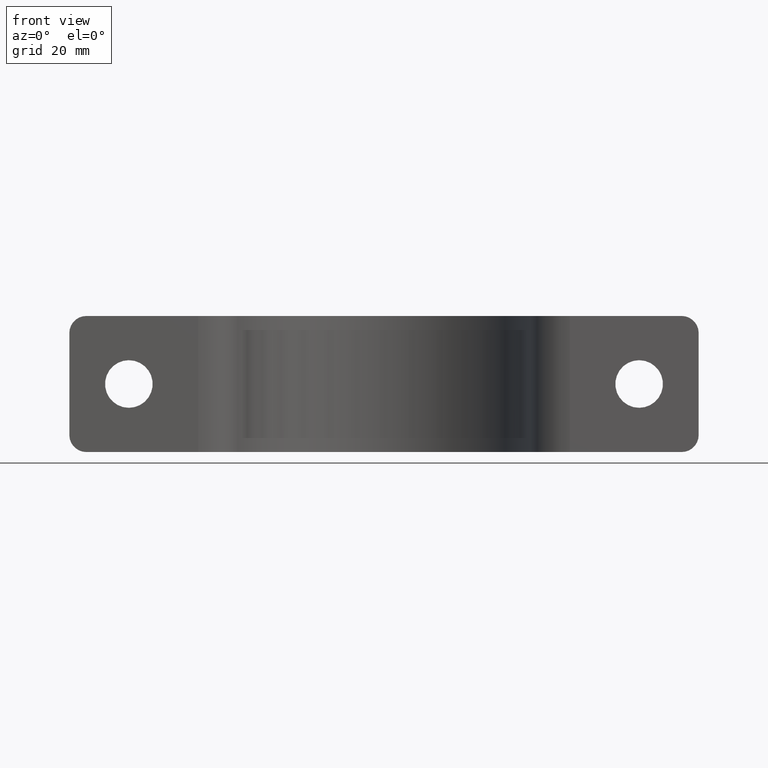
[diagram: clean part render]
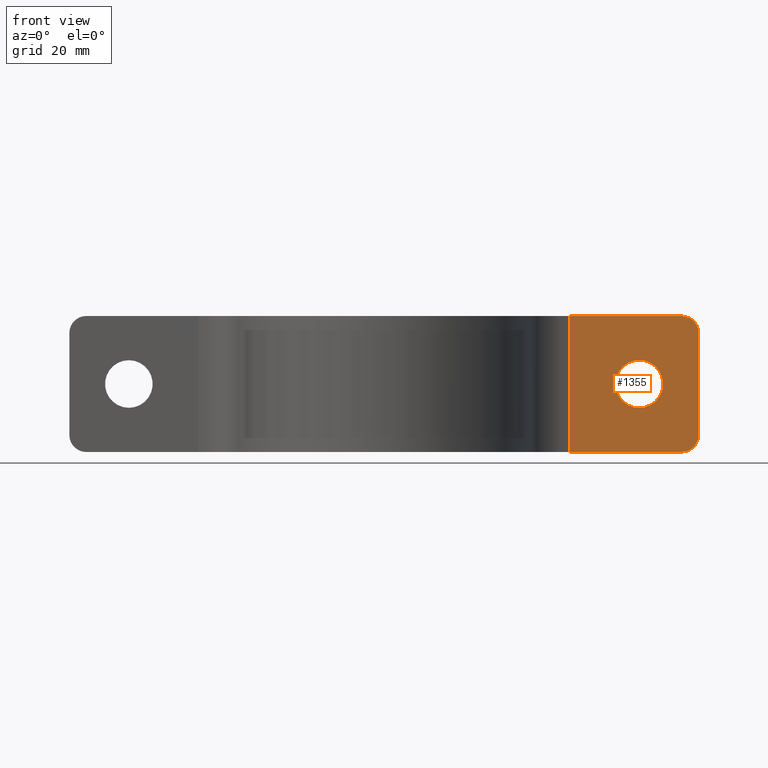
[diagram: same view with one face highlighted and labeled with its STEP entity id]
A machine part, front view. The second image highlights one B-rep face of the part: STEP entity #1355.
In plain terms, the highlighted planar face has unit normal (-0, 1, 0).
Its self-contained STEP definition (entity closure, byte-faithful):
#4 = CARTESIAN_POINT ( 'NONE',  ( 54.60769176590418539, 2.499999999999613642, -20.00000000000001776 ) ) ;
#12 = DIRECTION ( 'NONE',  ( 0.000000000000000000, 0.000000000000000000, 1.000000000000000000 ) ) ;
#30 = EDGE_CURVE ( 'NONE', #240, #684, #74, .T. ) ;
#32 = DIRECTION ( 'NONE',  ( 1.000000000000000000, 1.553771671561059389E-15, 0.000000000000000000 ) ) ;
#49 = CARTESIAN_POINT ( 'NONE',  ( 74.99999999999995737, 2.500000000000057732, 0.000000000000000000 ) ) ;
#74 = LINE ( 'NONE', #177, #269 ) ;
#84 = CARTESIAN_POINT ( 'NONE',  ( 44.42971978304611014, 2.499999999999946709, 20.00000000000001776 ) ) ;
#85 = EDGE_CURVE ( 'NONE', #934, #240, #792, .T. ) ;
#96 = AXIS2_PLACEMENT_3D ( 'NONE', #400, #541, #1097 ) ;
#122 = AXIS2_PLACEMENT_3D ( 'NONE', #657, #1473, #257 ) ;
#173 = LINE ( 'NONE', #1554, #1668 ) ;
#177 = CARTESIAN_POINT ( 'NONE',  ( 44.42971978304611014, 2.499999999999946709, -20.00000000000001776 ) ) ;
#240 = VERTEX_POINT ( 'NONE', #4 ) ;
#257 = DIRECTION ( 'NONE',  ( -1.000000000000000000, -1.561251128379125004E-15, 0.000000000000000000 ) ) ;
#269 = VECTOR ( 'NONE', #987, 1000.000000000000000 ) ;
#290 = VERTEX_POINT ( 'NONE', #1475 ) ;
#313 = CARTESIAN_POINT ( 'NONE',  ( 92.50000000000002842, 2.500000000000057732, -14.99999999999990230 ) ) ;
#318 = DIRECTION ( 'NONE',  ( -1.553771671561059389E-15, 1.000000000000000000, 0.000000000000000000 ) ) ;
#400 = CARTESIAN_POINT ( 'NONE',  ( 87.50000000000002842, 2.500000000000057732, 14.99999999999990230 ) ) ;
#425 = ORIENTED_EDGE ( 'NONE', *, *, #1158, .T. ) ;
#472 = CARTESIAN_POINT ( 'NONE',  ( 92.50000000000002842, 2.500000000000057732, 20.00000000000001776 ) ) ;
#513 = VERTEX_POINT ( 'NONE', #531 ) ;
#522 = EDGE_CURVE ( 'NONE', #684, #757, #1667, .T. ) ;
#531 = CARTESIAN_POINT ( 'NONE',  ( 74.99999999999995737, 2.500000000000057732, -6.999999999999992006 ) ) ;
#541 = DIRECTION ( 'NONE',  ( 6.655932518609344527E-16, -1.000000000000000000, 0.000000000000000000 ) ) ;
#557 = EDGE_CURVE ( 'NONE', #290, #737, #1210, .T. ) ;
#575 = CARTESIAN_POINT ( 'NONE',  ( 74.99999999999995737, 2.500000000000057732, 0.000000000000000000 ) ) ;
#583 = DIRECTION ( 'NONE',  ( 4.440892098500623203E-16, 1.000000000000000000, 0.000000000000000000 ) ) ;
#649 = EDGE_CURVE ( 'NONE', #934, #737, #173, .T. ) ;
#655 = AXIS2_PLACEMENT_3D ( 'NONE', #84, #318, #1321 ) ;
#657 = CARTESIAN_POINT ( 'NONE',  ( 87.50000000000002842, 2.500000000000057732, -14.99999999999990230 ) ) ;
#684 = VERTEX_POINT ( 'NONE', #1653 ) ;
#737 = VERTEX_POINT ( 'NONE', #862 ) ;
#738 = VERTEX_POINT ( 'NONE', #1686 ) ;
#739 = FACE_OUTER_BOUND ( 'NONE', #790, .T. ) ;
#757 = VERTEX_POINT ( 'NONE', #313 ) ;
#776 = VECTOR ( 'NONE', #1004, 1000.000000000000000 ) ;
#790 = EDGE_LOOP ( 'NONE', ( #1146, #947, #1766, #1598, #1279, #1666 ) ) ;
#792 = LINE ( 'NONE', #1435, #828 ) ;
#828 = VECTOR ( 'NONE', #1165, 1000.000000000000000 ) ;
#862 = CARTESIAN_POINT ( 'NONE',  ( 87.50000000000002842, 2.500000000000057732, 20.00000000000001776 ) ) ;
#888 = AXIS2_PLACEMENT_3D ( 'NONE', #575, #583, #12 ) ;
#934 = VERTEX_POINT ( 'NONE', #1605 ) ;
#947 = ORIENTED_EDGE ( 'NONE', *, *, #522, .T. ) ;
#987 = DIRECTION ( 'NONE',  ( 1.000000000000000000, 1.553771671561059389E-15, 0.000000000000000000 ) ) ;
#996 = DIRECTION ( 'NONE',  ( 0.000000000000000000, 0.000000000000000000, 1.000000000000000000 ) ) ;
#1004 = DIRECTION ( 'NONE',  ( 0.000000000000000000, 0.000000000000000000, -1.000000000000000000 ) ) ;
#1039 = AXIS2_PLACEMENT_3D ( 'NONE', #49, #1110, #996 ) ;
#1097 = DIRECTION ( 'NONE',  ( -1.000000000000000000, -1.561251128379125004E-15, 0.000000000000000000 ) ) ;
#1110 = DIRECTION ( 'NONE',  ( 4.440892098500623203E-16, 1.000000000000000000, 0.000000000000000000 ) ) ;
#1125 = EDGE_CURVE ( 'NONE', #513, #738, #1464, .T. ) ;
#1146 = ORIENTED_EDGE ( 'NONE', *, *, #30, .T. ) ;
#1148 = LINE ( 'NONE', #472, #776 ) ;
#1158 = EDGE_CURVE ( 'NONE', #738, #513, #1382, .T. ) ;
#1165 = DIRECTION ( 'NONE',  ( 0.000000000000000000, 0.000000000000000000, -1.000000000000000000 ) ) ;
#1210 = CIRCLE ( 'NONE', #96, 5.000000000000004441 ) ;
#1279 = ORIENTED_EDGE ( 'NONE', *, *, #649, .F. ) ;
#1287 = EDGE_CURVE ( 'NONE', #290, #757, #1148, .T. ) ;
#1321 = DIRECTION ( 'NONE',  ( -1.000000000000000000, -1.553771671561059389E-15, 0.000000000000000000 ) ) ;
#1355 = ADVANCED_FACE ( 'NONE', ( #1692, #739 ), #1562, .F. ) ;
#1370 = EDGE_LOOP ( 'NONE', ( #425, #1458 ) ) ;
#1382 = CIRCLE ( 'NONE', #1039, 6.999999999999992006 ) ;
#1435 = CARTESIAN_POINT ( 'NONE',  ( 54.60769176590418539, 2.499999999999613642, 20.00000000000001776 ) ) ;
#1458 = ORIENTED_EDGE ( 'NONE', *, *, #1125, .T. ) ;
#1464 = CIRCLE ( 'NONE', #888, 6.999999999999992006 ) ;
#1473 = DIRECTION ( 'NONE',  ( 6.655932518609344527E-16, -1.000000000000000000, 0.000000000000000000 ) ) ;
#1475 = CARTESIAN_POINT ( 'NONE',  ( 92.50000000000002842, 2.500000000000057732, 14.99999999999990230 ) ) ;
#1554 = CARTESIAN_POINT ( 'NONE',  ( 44.42971978304611014, 2.499999999999946709, 20.00000000000001776 ) ) ;
#1562 = PLANE ( 'NONE',  #655 ) ;
#1598 = ORIENTED_EDGE ( 'NONE', *, *, #557, .T. ) ;
#1605 = CARTESIAN_POINT ( 'NONE',  ( 54.60769176590418539, 2.499999999999613642, 20.00000000000001776 ) ) ;
#1653 = CARTESIAN_POINT ( 'NONE',  ( 87.50000000000002842, 2.500000000000057732, -20.00000000000001776 ) ) ;
#1666 = ORIENTED_EDGE ( 'NONE', *, *, #85, .T. ) ;
#1667 = CIRCLE ( 'NONE', #122, 5.000000000000004441 ) ;
#1668 = VECTOR ( 'NONE', #32, 1000.000000000000000 ) ;
#1686 = CARTESIAN_POINT ( 'NONE',  ( 74.99999999999995737, 2.500000000000057732, 6.999999999999992006 ) ) ;
#1692 = FACE_BOUND ( 'NONE', #1370, .T. ) ;
#1766 = ORIENTED_EDGE ( 'NONE', *, *, #1287, .F. ) ;